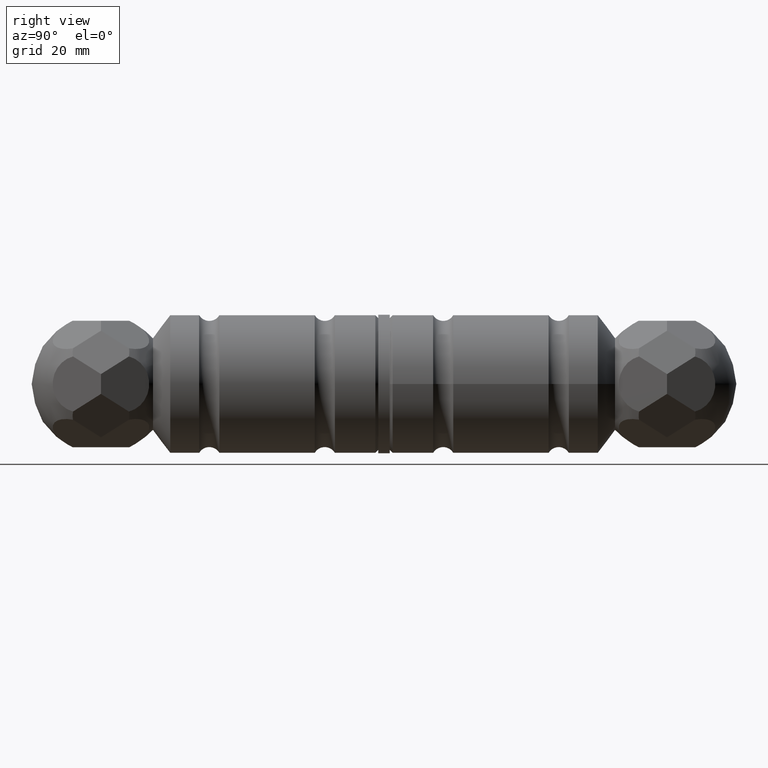
[diagram: clean part render]
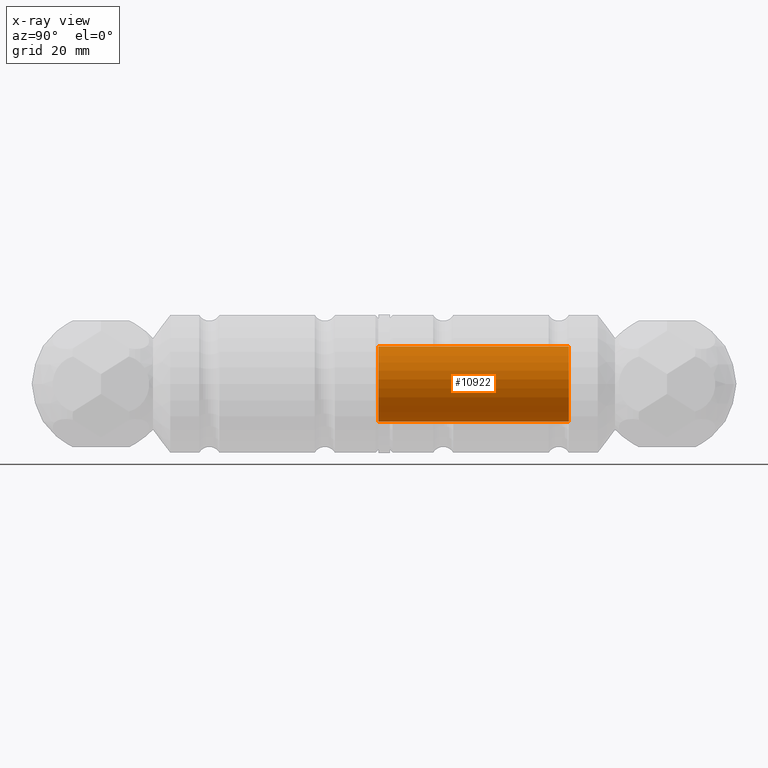
[diagram: x-ray — body ghosted, one internal face saturated and labeled with its STEP entity id]
A machine part, right view, then the same camera in x-ray: the body is ghosted and one INTERNAL B-rep face — a face not visible from any outside direction — is saturated and labeled: STEP entity #10922.
In plain terms, the highlighted cylindrical surface (bore or boss wall) has radius 6.5 mm, axis along (0, -1, 0).
Its self-contained STEP definition (entity closure, byte-faithful):
#678 = CIRCLE ( 'NONE', #10118, 6.500000000000000888 ) ;
#1099 = ORIENTED_EDGE ( 'NONE', *, *, #6863, .T. ) ;
#1531 = CARTESIAN_POINT ( 'NONE',  ( 0.000000000000000000, 0.000000000000000000, -6.500000000000000888 ) ) ;
#2205 = EDGE_LOOP ( 'NONE', ( #6225 ) ) ;
#3021 = CIRCLE ( 'NONE', #6732, 6.500000000000000888 ) ;
#3322 = EDGE_LOOP ( 'NONE', ( #1099 ) ) ;
#3455 = VERTEX_POINT ( 'NONE', #7177 ) ;
#4316 = DIRECTION ( 'NONE',  ( 0.000000000000000000, 0.000000000000000000, -1.000000000000000000 ) ) ;
#4518 = FACE_OUTER_BOUND ( 'NONE', #3322, .T. ) ;
#5250 = CYLINDRICAL_SURFACE ( 'NONE', #10585, 6.500000000000000888 ) ;
#6225 = ORIENTED_EDGE ( 'NONE', *, *, #11437, .T. ) ;
#6311 = CARTESIAN_POINT ( 'NONE',  ( 0.000000000000000000, 0.000000000000000000, 0.000000000000000000 ) ) ;
#6732 = AXIS2_PLACEMENT_3D ( 'NONE', #9968, #11885, #4316 ) ;
#6863 = EDGE_CURVE ( 'NONE', #10220, #10220, #678, .T. ) ;
#7177 = CARTESIAN_POINT ( 'NONE',  ( 3.081487911019577365E-30, -33.00000000000000000, -6.500000000000000888 ) ) ;
#9532 = CARTESIAN_POINT ( 'NONE',  ( 3.081487911019577365E-30, -34.00000000000000000, 3.421138828918010427E-45 ) ) ;
#9968 = CARTESIAN_POINT ( 'NONE',  ( 3.081487911019577365E-30, -33.00000000000000000, 6.842277657836020854E-46 ) ) ;
#10118 = AXIS2_PLACEMENT_3D ( 'NONE', #6311, #10947, #11767 ) ;
#10220 = VERTEX_POINT ( 'NONE', #1531 ) ;
#10249 = FACE_OUTER_BOUND ( 'NONE', #2205, .T. ) ;
#10470 = DIRECTION ( 'NONE',  ( -6.162975822039154730E-32, 1.000000000000000000, 0.000000000000000000 ) ) ;
#10513 = DIRECTION ( 'NONE',  ( 0.000000000000000000, 0.000000000000000000, 1.000000000000000000 ) ) ;
#10585 = AXIS2_PLACEMENT_3D ( 'NONE', #9532, #10470, #10513 ) ;
#10922 = ADVANCED_FACE ( 'NONE', ( #10249, #4518 ), #5250, .T. ) ;
#10947 = DIRECTION ( 'NONE',  ( 6.162975822039154730E-32, -1.000000000000000000, 0.000000000000000000 ) ) ;
#11437 = EDGE_CURVE ( 'NONE', #3455, #3455, #3021, .T. ) ;
#11767 = DIRECTION ( 'NONE',  ( 0.000000000000000000, 0.000000000000000000, -1.000000000000000000 ) ) ;
#11885 = DIRECTION ( 'NONE',  ( -6.162975822039154730E-32, 1.000000000000000000, -0.000000000000000000 ) ) ;